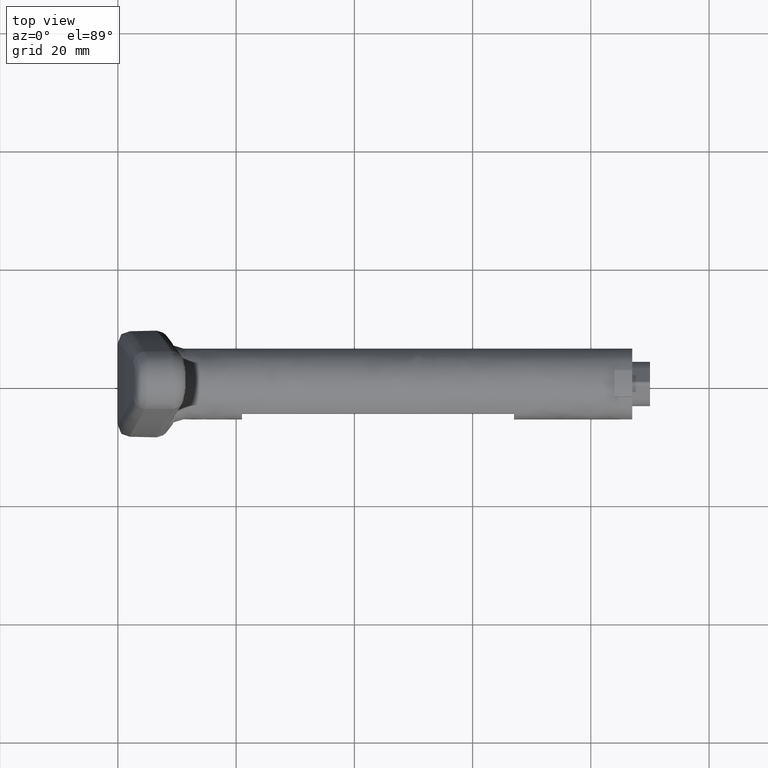
[diagram: clean part render]
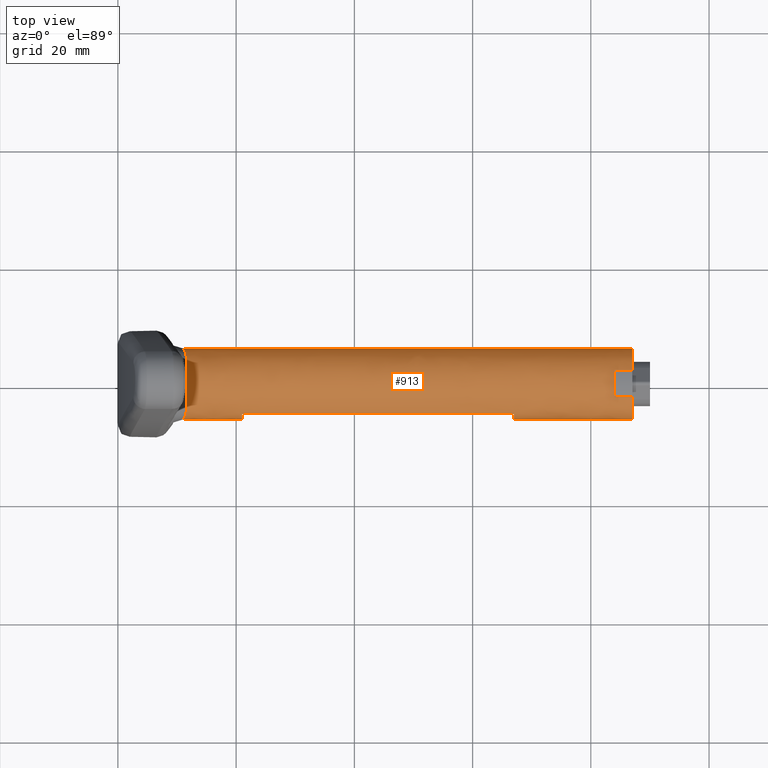
[diagram: same view with one face highlighted and labeled with its STEP entity id]
A machine part, top view. The second image highlights one B-rep face of the part: STEP entity #913.
In plain terms, the highlighted face is a freeform B-spline surface patch.
Its self-contained STEP definition (entity closure, byte-faithful):
#558=CARTESIAN_POINT('',(88.897935607688680,3.272475706650979,-5.029006139326056));
#559=CARTESIAN_POINT('',(88.897935607688666,1.661296594675937,-6.077432877518187));
#560=CARTESIAN_POINT('',(88.897935607688666,-0.259172689624774,-5.994399846269235));
#561=CARTESIAN_POINT('',(88.897935607688652,-6.253572535894008,-5.735227156644463));
#562=CARTESIAN_POINT('',(88.897935607688666,-5.994399846269235,0.259172689624774));
#563=CARTESIAN_POINT('',(88.897935607688652,-5.735227156644463,6.253572535894008));
#564=CARTESIAN_POINT('',(88.897935607688666,0.259172689624774,5.994399846269235));
#565=CARTESIAN_POINT('',(88.897935607688652,6.253572535894008,5.735227156644463));
#566=CARTESIAN_POINT('',(88.897935607688666,5.994399846269235,-0.259172689624774));
#567=CARTESIAN_POINT('',(9.137191694572978,3.272475706650979,-5.029006139326056));
#568=CARTESIAN_POINT('',(9.137191694572977,1.661296594675937,-6.077432877518187));
#569=CARTESIAN_POINT('',(9.137191694572977,-0.259172689624774,-5.994399846269235));
#570=CARTESIAN_POINT('',(9.137191694572977,-6.253572535894008,-5.735227156644463));
#571=CARTESIAN_POINT('',(9.137191694572977,-5.994399846269235,0.259172689624774));
#572=CARTESIAN_POINT('',(9.137191694572977,-5.735227156644463,6.253572535894008));
#573=CARTESIAN_POINT('',(9.137191694572977,0.259172689624774,5.994399846269235));
#574=CARTESIAN_POINT('',(9.137191694572977,6.253572535894008,5.735227156644463));
#575=CARTESIAN_POINT('',(9.137191694572977,5.994399846269235,-0.259172689624774));
#583=(BOUNDED_SURFACE()B_SPLINE_SURFACE(2,1,((#558,#567),(#559,#568),(#560,#569),(#561,#570),(#562,#571),(#563,#572),(#564,#573),(#565,#574),(#566,#575)),.UNSPECIFIED.,.F.,.F.,.U.)B_SPLINE_SURFACE_WITH_KNOTS((3,2,2,2,3),(2,2),(0.0,3.976450198781711,13.917575695735991,23.858701192690258,33.799826689644540),(0.0,79.760743913115704),.UNSPECIFIED.)GEOMETRIC_REPRESENTATION_ITEM()RATIONAL_B_SPLINE_SURFACE(((0.859411254969543,0.859411254969543),(0.882842712474619,0.882842712474619),(1.0,1.0),(0.707106781186548,0.707106781186548),(1.0,1.0),(0.707106781186548,0.707106781186548),(1.0,1.0),(0.707106781186548,0.707106781186548),(1.0,1.0)))REPRESENTATION_ITEM('')SURFACE());
#584=CARTESIAN_POINT('',(87.0,2.250000000000000,-5.562148865321750));
#585=VERTEX_POINT('',#584);
#586=CARTESIAN_POINT('',(87.000000000000014,3.272475706656690,-5.029006139322339));
#587=VERTEX_POINT('',#586);
#588=CARTESIAN_POINT('',(87.0,2.249999999999999,-5.562148865321747));
#589=CARTESIAN_POINT('',(87.000000000000014,2.786972793726422,-5.344932675115633));
#590=CARTESIAN_POINT('',(87.000000000000014,3.272475706656690,-5.029006139322339));
#598=(BOUNDED_CURVE()B_SPLINE_CURVE(2,(#588,#589,#590),.UNSPECIFIED.,.F.,.U.)B_SPLINE_CURVE_WITH_KNOTS((3,3),(0.0,0.083873843230308),.UNSPECIFIED.)CURVE()GEOMETRIC_REPRESENTATION_ITEM()RATIONAL_B_SPLINE_CURVE((1.0,0.971341347399395,0.952297540140450))REPRESENTATION_ITEM(''));
#599=EDGE_CURVE('',#585,#587,#598,.T.);
#600=ORIENTED_EDGE('',*,*,#599,.F.);
#601=CARTESIAN_POINT('',(84.0,2.250000000000000,-5.562148865321750));
#602=VERTEX_POINT('',#601);
#603=CARTESIAN_POINT('',(87.0,2.250000000000000,-5.562148865321750));
#604=CARTESIAN_POINT('',(84.0,2.250000000000000,-5.562148865321750));
#605=QUASI_UNIFORM_CURVE('',1,(#603,#604),.UNSPECIFIED.,.F.,.U.);
#606=EDGE_CURVE('',#585,#602,#605,.T.);
#607=ORIENTED_EDGE('',*,*,#606,.T.);
#608=CARTESIAN_POINT('',(84.0,-2.250000000000000,-5.562148865321750));
#609=VERTEX_POINT('',#608);
#610=CARTESIAN_POINT('',(84.0,-2.250000000000000,-5.562148865321747));
#611=CARTESIAN_POINT('',(84.0,-2.602085E-015,-6.472318679647123));
#612=CARTESIAN_POINT('',(84.0,2.249999999999998,-5.562148865321747));
#620=(BOUNDED_CURVE()B_SPLINE_CURVE(2,(#610,#611,#612),.UNSPECIFIED.,.F.,.U.)CURVE()GEOMETRIC_REPRESENTATION_ITEM()QUASI_UNIFORM_CURVE()RATIONAL_B_SPLINE_CURVE((1.0,0.927024810886958,1.0))REPRESENTATION_ITEM(''));
#621=EDGE_CURVE('',#609,#602,#620,.T.);
#622=ORIENTED_EDGE('',*,*,#621,.F.);
#623=CARTESIAN_POINT('',(87.0,-2.250000000000000,-5.562148865321750));
#624=VERTEX_POINT('',#623);
#625=CARTESIAN_POINT('',(84.0,-2.250000000000000,-5.562148865321750));
#626=CARTESIAN_POINT('',(87.0,-2.250000000000000,-5.562148865321750));
#627=QUASI_UNIFORM_CURVE('',1,(#625,#626),.UNSPECIFIED.,.F.,.U.);
#628=EDGE_CURVE('',#609,#624,#627,.T.);
#629=ORIENTED_EDGE('',*,*,#628,.T.);
#630=CARTESIAN_POINT('',(87.0,-2.250000000000000,5.562148865321750));
#631=VERTEX_POINT('',#630);
#632=CARTESIAN_POINT('',(87.0,-2.249999999999999,5.562148865321747));
#633=CARTESIAN_POINT('',(87.0,-5.999999999999999,4.045199174779453));
#634=CARTESIAN_POINT('',(87.0,-6.0,0.0));
#635=CARTESIAN_POINT('',(87.0,-5.999999999999999,-4.045199174779453));
#636=CARTESIAN_POINT('',(87.0,-2.250000000000000,-5.562148865321747));
#644=(BOUNDED_CURVE()B_SPLINE_CURVE(2,(#632,#633,#634,#635,#636),.UNSPECIFIED.,.F.,.U.)B_SPLINE_CURVE_WITH_KNOTS((3,2,3),(0.0,0.500000000000000,1.0),.UNSPECIFIED.)CURVE()GEOMETRIC_REPRESENTATION_ITEM()RATIONAL_B_SPLINE_CURVE((1.0,0.829156197588850,1.0,0.829156197588850,1.0))REPRESENTATION_ITEM(''));
#645=EDGE_CURVE('',#631,#624,#644,.T.);
#646=ORIENTED_EDGE('',*,*,#645,.F.);
#647=CARTESIAN_POINT('',(84.0,-2.250000000000000,5.562148865321750));
#648=VERTEX_POINT('',#647);
#649=CARTESIAN_POINT('',(87.0,-2.250000000000000,5.562148865321750));
#650=CARTESIAN_POINT('',(84.0,-2.250000000000000,5.562148865321750));
#651=QUASI_UNIFORM_CURVE('',1,(#649,#650),.UNSPECIFIED.,.F.,.U.);
#652=EDGE_CURVE('',#631,#648,#651,.T.);
#653=ORIENTED_EDGE('',*,*,#652,.T.);
#654=CARTESIAN_POINT('',(84.0,2.250000000000000,5.562148865321750));
#655=VERTEX_POINT('',#654);
#656=CARTESIAN_POINT('',(84.0,2.250000000000000,5.562148865321747));
#657=CARTESIAN_POINT('',(84.0,1.734723E-015,6.472318679647123));
#658=CARTESIAN_POINT('',(84.0,-2.249999999999999,5.562148865321747));
#666=(BOUNDED_CURVE()B_SPLINE_CURVE(2,(#656,#657,#658),.UNSPECIFIED.,.F.,.U.)CURVE()GEOMETRIC_REPRESENTATION_ITEM()QUASI_UNIFORM_CURVE()RATIONAL_B_SPLINE_CURVE((1.0,0.927024810886958,1.0))REPRESENTATION_ITEM(''));
#667=EDGE_CURVE('',#655,#648,#666,.T.);
#668=ORIENTED_EDGE('',*,*,#667,.F.);
#669=CARTESIAN_POINT('',(87.0,2.250000000000000,5.562148865321750));
#670=VERTEX_POINT('',#669);
#671=CARTESIAN_POINT('',(84.0,2.250000000000000,5.562148865321750));
#672=CARTESIAN_POINT('',(87.0,2.250000000000000,5.562148865321750));
#673=QUASI_UNIFORM_CURVE('',1,(#671,#672),.UNSPECIFIED.,.F.,.U.);
#674=EDGE_CURVE('',#655,#670,#673,.T.);
#675=ORIENTED_EDGE('',*,*,#674,.T.);
#676=CARTESIAN_POINT('',(87.0,5.994400183671758,-0.259164885613289));
#677=VERTEX_POINT('',#676);
#678=CARTESIAN_POINT('',(87.0,5.994400183671758,-0.259164885613289));
#679=CARTESIAN_POINT('',(87.0,6.000000000000001,-0.129642940861456));
#680=CARTESIAN_POINT('',(87.0,6.0,0.0));
#681=CARTESIAN_POINT('',(87.0,5.999999999999999,4.045199174779453));
#682=CARTESIAN_POINT('',(87.0,2.250000000000000,5.562148865321747));
#690=(BOUNDED_CURVE()B_SPLINE_CURVE(2,(#678,#679,#680,#681,#682),.UNSPECIFIED.,.F.,.U.)B_SPLINE_CURVE_WITH_KNOTS((3,2,3),(0.480800752973223,0.500000000000000,1.0),.UNSPECIFIED.)CURVE()GEOMETRIC_REPRESENTATION_ITEM()RATIONAL_B_SPLINE_CURVE((0.987383509894943,0.993439855269029,1.0,0.829156197588850,1.0))REPRESENTATION_ITEM(''));
#691=EDGE_CURVE('',#677,#670,#690,.T.);
#692=ORIENTED_EDGE('',*,*,#691,.F.);
#693=CARTESIAN_POINT('',(11.086340323174101,5.994401223828133,-0.259173088863730));
#694=VERTEX_POINT('',#693);
#695=CARTESIAN_POINT('',(87.0,5.994400183671758,-0.259164885613289));
#696=CARTESIAN_POINT('',(11.086340323174101,5.994401223828133,-0.259173088863730));
#697=QUASI_UNIFORM_CURVE('',1,(#695,#696),.UNSPECIFIED.,.F.,.U.);
#698=EDGE_CURVE('',#677,#694,#697,.T.);
#699=ORIENTED_EDGE('',*,*,#698,.T.);
#700=CARTESIAN_POINT('',(11.564624542575700,4.599192498485330,3.853236089558530));
#701=VERTEX_POINT('',#700);
#702=CARTESIAN_POINT('',(11.086340323174101,5.994401223828133,-0.259173088863730));
#703=CARTESIAN_POINT('',(11.083856217826581,5.998115840659059,-0.173257644302390));
#704=CARTESIAN_POINT('',(11.082589431410460,5.999985662819935,-0.087167258318415));
#705=CARTESIAN_POINT('',(11.082562872941640,6.000024848848797,0.173664953561515));
#706=CARTESIAN_POINT('',(11.087698643998930,5.992448754762479,0.348955982969933));
#707=CARTESIAN_POINT('',(11.102995424394569,5.969256060387609,0.613005351655031));
#708=CARTESIAN_POINT('',(11.109351831645871,5.959550786325963,0.701046264330269));
#709=CARTESIAN_POINT('',(11.124233346945820,5.936460615457279,0.875298546833954));
#710=CARTESIAN_POINT('',(11.132772359629460,5.923054412049898,0.961779335543251));
#711=CARTESIAN_POINT('',(11.180270135301051,5.846921110825792,1.391107383839879));
#712=CARTESIAN_POINT('',(11.233899135170500,5.757178827536690,1.724766718769453));
#713=CARTESIAN_POINT('',(11.306734867020570,5.609254728976112,2.131607566596139));
#714=CARTESIAN_POINT('',(11.321575384345060,5.577864243291532,2.212461583613993));
#715=CARTESIAN_POINT('',(11.351386843461469,5.511403049410266,2.373182016925441));
#716=CARTESIAN_POINT('',(11.366385824011040,5.476257362307573,2.453198168383462));
#717=CARTESIAN_POINT('',(11.410558645645200,5.366020889004581,2.690007497217549));
#718=CARTESIAN_POINT('',(11.438992468760350,5.286012348231107,2.843967648334595));
#719=CARTESIAN_POINT('',(11.490017879589860,5.112901688682318,3.144569291267868));
#720=CARTESIAN_POINT('',(11.512623992682849,5.019801220288953,3.291209741063705));
#721=CARTESIAN_POINT('',(11.547630569902770,4.819979892957205,3.577465681218827));
#722=CARTESIAN_POINT('',(11.560057109859571,4.713264348995448,3.717080765256666));
#723=CARTESIAN_POINT('',(11.564624542575700,4.599192498485330,3.853236089558530));
#724=B_SPLINE_CURVE_WITH_KNOTS('',3,(#702,#703,#704,#705,#706,#707,#708,#709,#710,#711,#712,#713,#714,#715,#716,#717,#718,#719,#720,#721,#722,#723),.UNSPECIFIED.,.F.,.U.,(4,2,2,2,2,2,2,2,2,2,4),(0.469113170205939,0.500000000000000,0.562500000000000,0.593750000000000,0.625000000000000,0.750000000000000,0.781250000000000,0.812500000000000,0.875000000000000,0.937500000000000,1.0),.UNSPECIFIED.);
#725=EDGE_CURVE('',#694,#701,#724,.T.);
#726=ORIENTED_EDGE('',*,*,#725,.T.);
#727=CARTESIAN_POINT('',(11.564624542575659,-4.599192498485320,3.853236089558540));
#728=VERTEX_POINT('',#727);
#729=CARTESIAN_POINT('',(11.564624542575700,4.599192498485330,3.853236089558530));
#730=CARTESIAN_POINT('',(11.567426958503651,4.529205003496288,3.936772616898137));
#731=CARTESIAN_POINT('',(11.570263835947070,4.456763250616773,4.018618886660359));
#732=CARTESIAN_POINT('',(11.575982270201539,4.306871398339682,4.178862905915333));
#733=CARTESIAN_POINT('',(11.578864940488870,4.229373256905967,4.257274248299306));
#734=CARTESIAN_POINT('',(11.587434664431390,3.992221870220357,4.484427859246841));
#735=CARTESIAN_POINT('',(11.593078810153949,3.827012677615041,4.626130958513292));
#736=CARTESIAN_POINT('',(11.604035229426851,3.482735161787037,4.890569442589849));
#737=CARTESIAN_POINT('',(11.609347884722840,3.303666188968582,5.013303921831868));
#738=CARTESIAN_POINT('',(11.616924970260190,3.024560845973504,5.183038521388908));
#739=CARTESIAN_POINT('',(11.619385333507349,2.929771607251849,5.237216983231891));
#740=CARTESIAN_POINT('',(11.624150779532270,2.736619059080880,5.340685304863683));
#741=CARTESIAN_POINT('',(11.626461403100260,2.637982677514784,5.390089708904733));
#742=CARTESIAN_POINT('',(11.633049714857790,2.339970548159222,5.529250992800233));
#743=CARTESIAN_POINT('',(11.637003969846949,2.137787721218377,5.610438675262738));
#744=CARTESIAN_POINT('',(11.643922989321879,1.726604558929387,5.750303919529839));
#745=CARTESIAN_POINT('',(11.646887976633430,1.517603770365993,5.808979970672629));
#746=CARTESIAN_POINT('',(11.650510027388080,1.198953330970332,5.879996027722413));
#747=CARTESIAN_POINT('',(11.651579801637730,1.091876444396601,5.900828875703295));
#748=CARTESIAN_POINT('',(11.653429918668090,0.875973282063111,5.936720171885614));
#749=CARTESIAN_POINT('',(11.654211423365020,0.766919131936005,5.951800991644422));
#750=CARTESIAN_POINT('',(11.656089969278000,0.438907028427887,5.987967987278542));
#751=CARTESIAN_POINT('',(11.656721980675750,0.219471066662766,6.000026072592874));
#752=CARTESIAN_POINT('',(11.656719251363640,-0.220894328046598,5.999973843004083));
#753=CARTESIAN_POINT('',(11.656084606792881,-0.439785383640799,5.987864667411102));
#754=CARTESIAN_POINT('',(11.654215609026860,-0.766217233334295,5.951881615595621));
#755=CARTESIAN_POINT('',(11.653439759967270,-0.874709666669702,5.936910559060792));
#756=CARTESIAN_POINT('',(11.651587818281261,-1.091054986323156,5.900984918136322));
#757=CARTESIAN_POINT('',(11.650509749472331,-1.199077976449561,5.879991690847320));
#758=CARTESIAN_POINT('',(11.646846718431300,-1.521031348778621,5.808168794740074));
#759=CARTESIAN_POINT('',(11.643855253887370,-1.731115219951875,5.748953873764361));
#760=CARTESIAN_POINT('',(11.636916346343030,-2.142498722331921,5.608647766817359));
#761=CARTESIAN_POINT('',(11.632968620422140,-2.343797427196228,5.527554282590605));
#762=CARTESIAN_POINT('',(11.624255396094339,-2.737607640868535,5.343477063801773));
#763=CARTESIAN_POINT('',(11.619489613994331,-2.930120117573964,5.240495758291557));
#764=CARTESIAN_POINT('',(11.611834435242070,-3.212058392916943,5.069001953492689));
#765=CARTESIAN_POINT('',(11.609216668320419,-3.304216911771913,5.009399696557058));
#766=CARTESIAN_POINT('',(11.603891533458800,-3.484385553940516,4.885794923182522));
#767=CARTESIAN_POINT('',(11.601181517435940,-3.572492860760753,4.821733329929693));
#768=CARTESIAN_POINT('',(11.592947090361131,-3.830971614902971,4.622869959924613));
#769=CARTESIAN_POINT('',(11.587318292827320,-3.995516868545395,4.481409004264219));
#770=CARTESIAN_POINT('',(11.575980943520440,-4.309107001067656,4.180762916464046));
#771=CARTESIAN_POINT('',(11.570271987950390,-4.458153279100495,4.021579400144839));
#772=CARTESIAN_POINT('',(11.564624542575659,-4.599192498485320,3.853236089558540));
#773=B_SPLINE_CURVE_WITH_KNOTS('',3,(#729,#730,#731,#732,#733,#734,#735,#736,#737,#738,#739,#740,#741,#742,#743,#744,#745,#746,#747,#748,#749,#750,#751,#752,#753,#754,#755,#756,#757,#758,#759,#760,#761,#762,#763,#764,#765,#766,#767,#768,#769,#770,#771,#772),.UNSPECIFIED.,.F.,.U.,(4,2,2,2,2,2,2,2,2,2,2,2,2,2,2,2,2,2,2,2,2,4),(0.0,0.031250000000000,0.062500000000000,0.125000000000000,0.187500000000000,0.218750000000000,0.250000000000000,0.312500000000000,0.375000000000000,0.406250000000000,0.437500000000000,0.500000000000000,0.562500000000000,0.593750000000000,0.625000000000000,0.687500000000000,0.750000000000000,0.812500000000000,0.843750000000000,0.875000000000000,0.937500000000000,1.0),.UNSPECIFIED.);
#774=EDGE_CURVE('',#701,#728,#773,.T.);
#775=ORIENTED_EDGE('',*,*,#774,.T.);
#776=CARTESIAN_POINT('',(11.564624543245079,-4.599192498471480,-3.853236089575070));
#777=VERTEX_POINT('',#776);
#778=CARTESIAN_POINT('',(11.564624542575659,-4.599192498485320,3.853236089558540));
#779=CARTESIAN_POINT('',(11.560065685416189,-4.713045331475964,3.717342237416753));
#780=CARTESIAN_POINT('',(11.547644774691230,-4.820054871209594,3.577416639181740));
#781=CARTESIAN_POINT('',(11.521195667024260,-4.970789501690633,3.361392780206383));
#782=CARTESIAN_POINT('',(11.511065770151090,-5.019400417480176,3.288360536672463));
#783=CARTESIAN_POINT('',(11.488744814593471,-5.113390856575299,3.140211699557389));
#784=CARTESIAN_POINT('',(11.476533607175300,-5.158824332535138,3.064989832380819));
#785=CARTESIAN_POINT('',(11.412119032098911,-5.376432891885515,2.686274003880040));
#786=CARTESIAN_POINT('',(11.349975936578270,-5.521503539500671,2.373268722553527));
#787=CARTESIAN_POINT('',(11.262787682225889,-5.698467353572529,1.886086228625404));
#788=CARTESIAN_POINT('',(11.234659535369110,-5.750614369703366,1.720730895758854));
#789=CARTESIAN_POINT('',(11.196193578844250,-5.818357720537569,1.467764813253599));
#790=CARTESIAN_POINT('',(11.183961589165390,-5.839236606459648,1.382385924333591));
#791=CARTESIAN_POINT('',(11.161284942183030,-5.877107654137347,1.211313589329468));
#792=CARTESIAN_POINT('',(11.150833642149170,-5.894115954000292,1.125610755354939));
#793=CARTESIAN_POINT('',(11.122521770142210,-5.939444386004862,0.867992046415899));
#794=CARTESIAN_POINT('',(11.107727102391920,-5.962079501594640,0.695565735506619));
#795=CARTESIAN_POINT('',(11.087761939027979,-5.992344445339939,0.349301766599335));
#796=CARTESIAN_POINT('',(11.082593316462070,-5.999973759062655,0.175463995666964));
#797=CARTESIAN_POINT('',(11.082558158389080,-6.000026106052419,-0.173664762992764));
#798=CARTESIAN_POINT('',(11.087694129283379,-5.992449958682587,-0.348955800480628));
#799=CARTESIAN_POINT('',(11.102991216162209,-5.969257182588723,-0.613005181555560));
#800=CARTESIAN_POINT('',(11.109347726515569,-5.959551881036538,-0.701046098398334));
#801=CARTESIAN_POINT('',(11.124229447650940,-5.936461655285161,-0.875298389222005));
#802=CARTESIAN_POINT('',(11.132768563379560,-5.923055424402547,-0.961779182096283));
#803=CARTESIAN_POINT('',(11.180266854913910,-5.846921985632360,-1.391107251243034));
#804=CARTESIAN_POINT('',(11.233896269483290,-5.757179591771311,-1.724766602932000));
#805=CARTESIAN_POINT('',(11.306732522581299,-5.609255354231126,-2.131607471823918));
#806=CARTESIAN_POINT('',(11.321573144301039,-5.577864840711841,-2.212461493060704));
#807=CARTESIAN_POINT('',(11.351384812516940,-5.511403591078923,-2.373181934822544));
#808=CARTESIAN_POINT('',(11.366383897970501,-5.476257876006022,-2.453198090520071));
#809=CARTESIAN_POINT('',(11.410557032405301,-5.366021319302208,-2.690007431995590));
#810=CARTESIAN_POINT('',(11.438991062016401,-5.286012723471703,-2.843967591458263));
#811=CARTESIAN_POINT('',(11.490016881855500,-5.112901954870606,-3.144569250922930));
#812=CARTESIAN_POINT('',(11.512623197462259,-5.019801432481942,-3.291209708904533));
#813=CARTESIAN_POINT('',(11.547630175688480,-4.819979998231211,-3.577465665270073));
#814=CARTESIAN_POINT('',(11.560056914138810,-4.713264401345534,-3.717080757332597));
#815=CARTESIAN_POINT('',(11.564624543245101,-4.599192498471469,-3.853236089575066));
#816=B_SPLINE_CURVE_WITH_KNOTS('',3,(#778,#779,#780,#781,#782,#783,#784,#785,#786,#787,#788,#789,#790,#791,#792,#793,#794,#795,#796,#797,#798,#799,#800,#801,#802,#803,#804,#805,#806,#807,#808,#809,#810,#811,#812,#813,#814,#815),.UNSPECIFIED.,.F.,.U.,(4,2,2,2,2,2,2,2,2,2,2,2,2,2,2,2,2,2,4),(0.0,0.062500000000000,0.093750000000000,0.125000000000000,0.250000000000001,0.312500000000001,0.343750000000001,0.375000000000001,0.437500000000001,0.500000000000001,0.562500000000001,0.593750000000001,0.625000000000001,0.750000000000001,0.781250000000001,0.812500000000000,0.875000000000000,0.937500000000000,1.0),.UNSPECIFIED.);
#817=EDGE_CURVE('',#728,#777,#816,.T.);
#818=ORIENTED_EDGE('',*,*,#817,.T.);
#819=CARTESIAN_POINT('',(11.610090042534850,3.272476526666563,-5.029008406015510));
#820=VERTEX_POINT('',#819);
#821=CARTESIAN_POINT('',(11.564624543245079,-4.599192498471480,-3.853236089575070));
#822=CARTESIAN_POINT('',(11.570262355957290,-4.458393800137471,-4.021292307158803));
#823=CARTESIAN_POINT('',(11.575967271237859,-4.309472558125570,-4.180389350528753));
#824=CARTESIAN_POINT('',(11.587307974476440,-3.995814572103661,-4.481146543559900));
#825=CARTESIAN_POINT('',(11.592944164256940,-3.831076967938454,-4.622805729410819));
#826=CARTESIAN_POINT('',(11.601196959464289,-3.572000781171291,-4.822103286817665));
#827=CARTESIAN_POINT('',(11.603914296431540,-3.483642735109847,-4.886332468776915));
#828=CARTESIAN_POINT('',(11.609256058190271,-3.302855430296523,-5.010305108454277));
#829=CARTESIAN_POINT('',(11.611887984394990,-3.210137796849027,-5.070213565467997));
#830=CARTESIAN_POINT('',(11.619525448300880,-2.928693336335162,-5.241274894163068));
#831=CARTESIAN_POINT('',(11.624285757569190,-2.736335637415311,-5.344129092887162));
#832=CARTESIAN_POINT('',(11.632996317342339,-2.342441900444503,-5.528129263356677));
#833=CARTESIAN_POINT('',(11.636946858368900,-2.140905191772721,-5.609273632381676));
#834=CARTESIAN_POINT('',(11.642157190087399,-1.831674367145077,-5.714614608108121));
#835=CARTESIAN_POINT('',(11.643774716750270,-1.727440617140913,-5.746993045330386));
#836=CARTESIAN_POINT('',(11.646752788063340,-1.516621255809115,-5.806189739849191));
#837=CARTESIAN_POINT('',(11.648116577020900,-1.409738736137565,-5.833071446068615));
#838=CARTESIAN_POINT('',(11.651769505767421,-1.087684582037460,-5.904685361400913));
#839=CARTESIAN_POINT('',(11.653611209960779,-0.872221510912426,-5.940246320106456));
#840=CARTESIAN_POINT('',(11.656081694229711,-0.439824702744740,-5.987808369003174));
#841=CARTESIAN_POINT('',(11.656710524980941,-0.222890828140923,-5.999807247044539));
#842=CARTESIAN_POINT('',(11.656730305288900,0.212451360131927,-6.000185812460059));
#843=CARTESIAN_POINT('',(11.656120590013700,0.430984768907644,-5.988554608437180));
#844=CARTESIAN_POINT('',(11.653640424387200,0.869074668387924,-5.940811510021043));
#845=CARTESIAN_POINT('',(11.651788255209929,1.085548150314391,-5.905047896064562));
#846=CARTESIAN_POINT('',(11.648156311474100,1.406464181729771,-5.833853265250944));
#847=CARTESIAN_POINT('',(11.646803359864199,1.512802376719954,-5.807190130127007));
#848=CARTESIAN_POINT('',(11.643823541545419,1.724204399997504,-5.747968902062155));
#849=CARTESIAN_POINT('',(11.642193131842330,1.829474299903102,-5.715339225620048));
#850=CARTESIAN_POINT('',(11.636932305241499,2.141885148228830,-5.608984694351020));
#851=CARTESIAN_POINT('',(11.632955730029339,2.344430770235421,-5.527288707293236));
#852=CARTESIAN_POINT('',(11.624235145203089,2.738458091984131,-5.343044247987025));
#853=CARTESIAN_POINT('',(11.619490795794761,2.929938681177328,-5.240493694615674));
#854=CARTESIAN_POINT('',(11.613017275286520,3.168524673718185,-5.095509628301231));
#855=CARTESIAN_POINT('',(11.611564752629230,3.220724902539402,-5.062681969309741));
#856=CARTESIAN_POINT('',(11.610090042534850,3.272476526666563,-5.029008406015510));
#857=B_SPLINE_CURVE_WITH_KNOTS('',3,(#821,#822,#823,#824,#825,#826,#827,#828,#829,#830,#831,#832,#833,#834,#835,#836,#837,#838,#839,#840,#841,#842,#843,#844,#845,#846,#847,#848,#849,#850,#851,#852,#853,#854,#855,#856),.UNSPECIFIED.,.F.,.U.,(4,2,2,2,2,2,2,2,2,2,2,2,2,2,2,2,2,4),(0.0,0.062500000000000,0.125000000000000,0.156250000000000,0.187500000000000,0.250000000000000,0.312500000000000,0.343750000000000,0.375000000000000,0.437500000000000,0.500000000000000,0.562500000000000,0.625000000000000,0.656250000000000,0.687500000000000,0.750000000000000,0.812500000000000,0.830195075067958),.UNSPECIFIED.);
#858=EDGE_CURVE('',#777,#820,#857,.T.);
#859=ORIENTED_EDGE('',*,*,#858,.T.);
#860=CARTESIAN_POINT('',(87.000000000000014,3.272475706656690,-5.029006139322339));
#861=CARTESIAN_POINT('',(11.610090042534850,3.272476526666563,-5.029008406015510));
#862=QUASI_UNIFORM_CURVE('',1,(#860,#861),.UNSPECIFIED.,.F.,.U.);
#863=EDGE_CURVE('',#587,#820,#862,.T.);
#864=ORIENTED_EDGE('',*,*,#863,.F.);
#865=EDGE_LOOP('',(#600,#607,#622,#629,#646,#653,#668,#675,#692,#699,#726,#775,#818,#859,#864));
#866=FACE_OUTER_BOUND('',#865,.T.);
#867=CARTESIAN_POINT('',(67.0,-5.0,-3.316624790354440));
#868=VERTEX_POINT('',#867);
#869=CARTESIAN_POINT('',(21.0,-5.0,-3.316624790355400));
#870=VERTEX_POINT('',#869);
#871=CARTESIAN_POINT('',(67.0,-5.0,-3.316624790354440));
#872=CARTESIAN_POINT('',(21.0,-5.0,-3.316624790355400));
#873=QUASI_UNIFORM_CURVE('',1,(#871,#872),.UNSPECIFIED.,.F.,.U.);
#874=EDGE_CURVE('',#868,#870,#873,.T.);
#875=ORIENTED_EDGE('',*,*,#874,.T.);
#876=CARTESIAN_POINT('',(21.0,-5.0,3.316624790355400));
#877=VERTEX_POINT('',#876);
#878=CARTESIAN_POINT('',(21.0,-4.999999999999999,-3.316624790355402));
#879=CARTESIAN_POINT('',(21.000000000000004,-7.200000000000002,-1.734723E-015));
#880=CARTESIAN_POINT('',(21.0,-5.0,3.316624790355400));
#888=(BOUNDED_CURVE()B_SPLINE_CURVE(2,(#878,#879,#880),.UNSPECIFIED.,.F.,.U.)CURVE()GEOMETRIC_REPRESENTATION_ITEM()QUASI_UNIFORM_CURVE()RATIONAL_B_SPLINE_CURVE((1.0,0.833333333333333,1.0))REPRESENTATION_ITEM(''));
#889=EDGE_CURVE('',#870,#877,#888,.T.);
#890=ORIENTED_EDGE('',*,*,#889,.T.);
#891=CARTESIAN_POINT('',(67.0,-5.0,3.316624790354440));
#892=VERTEX_POINT('',#891);
#893=CARTESIAN_POINT('',(21.0,-5.0,3.316624790355400));
#894=CARTESIAN_POINT('',(67.0,-5.0,3.316624790354440));
#895=QUASI_UNIFORM_CURVE('',1,(#893,#894),.UNSPECIFIED.,.F.,.U.);
#896=EDGE_CURVE('',#877,#892,#895,.T.);
#897=ORIENTED_EDGE('',*,*,#896,.T.);
#898=CARTESIAN_POINT('',(67.0,-5.0,3.316624790354440));
#899=CARTESIAN_POINT('',(67.0,-7.199999999999364,1.734723E-015));
#900=CARTESIAN_POINT('',(67.0,-5.0,-3.316624790354440));
#908=(BOUNDED_CURVE()B_SPLINE_CURVE(2,(#898,#899,#900),.UNSPECIFIED.,.F.,.U.)CURVE()GEOMETRIC_REPRESENTATION_ITEM()QUASI_UNIFORM_CURVE()RATIONAL_B_SPLINE_CURVE((1.0,0.833333333333407,1.0))REPRESENTATION_ITEM(''));
#909=EDGE_CURVE('',#892,#868,#908,.T.);
#910=ORIENTED_EDGE('',*,*,#909,.T.);
#911=EDGE_LOOP('',(#875,#890,#897,#910));
#912=FACE_BOUND('',#911,.T.);
#913=ADVANCED_FACE('',(#866,#912),#583,.T.);